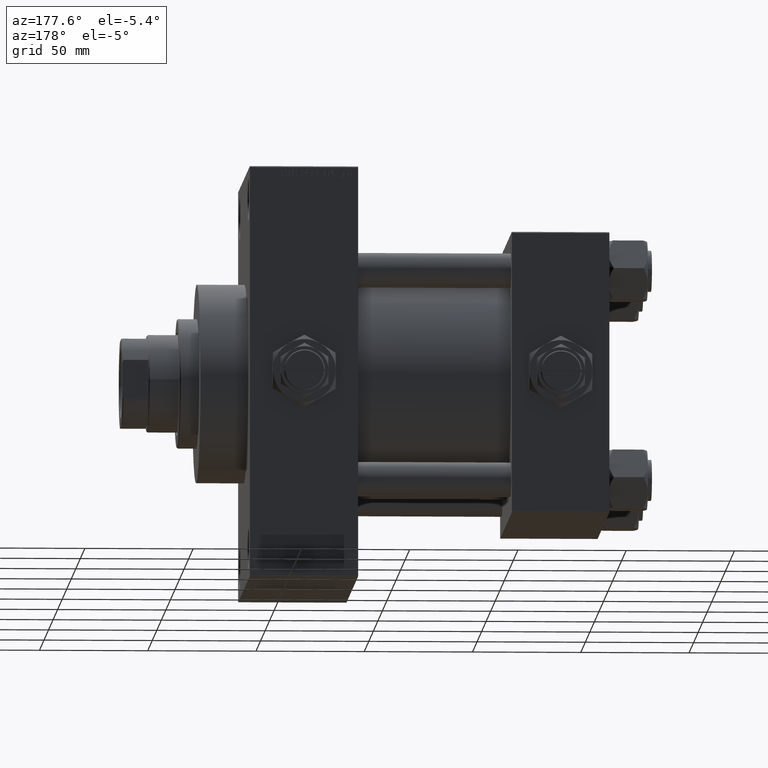
[diagram: clean part render]
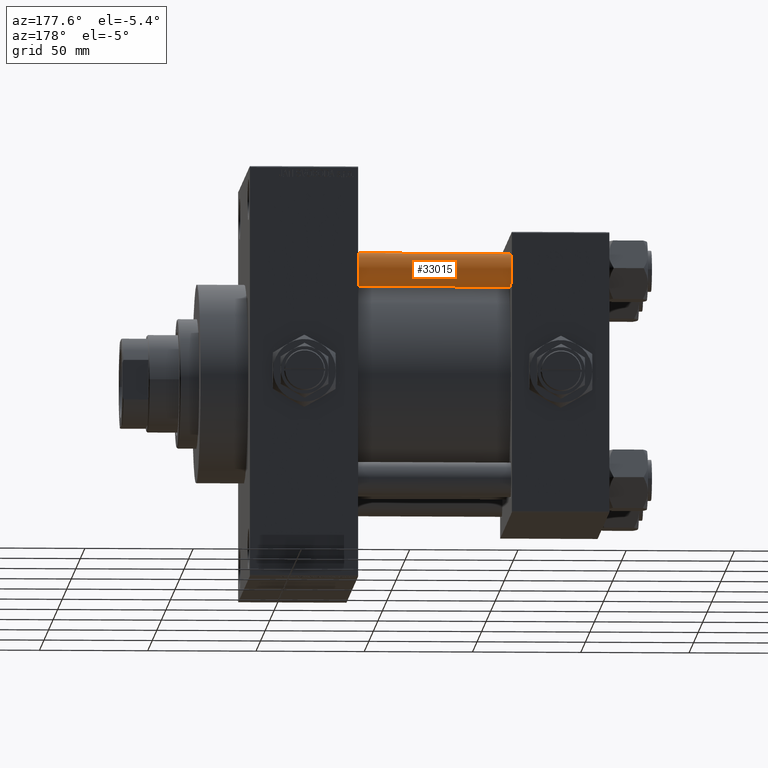
[diagram: same view with one face highlighted and labeled with its STEP entity id]
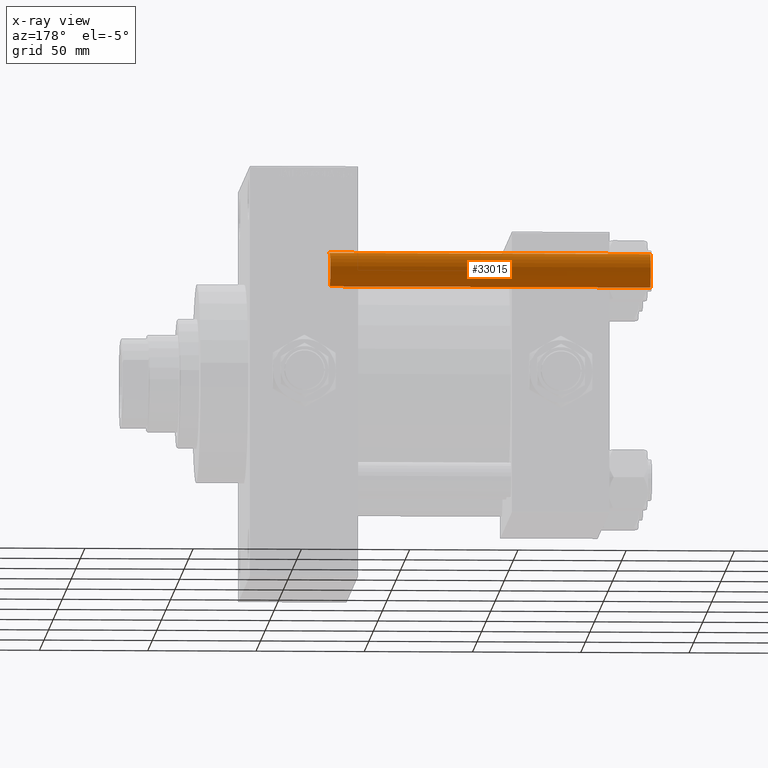
[diagram: x-ray of the same camera — body ghosted, the highlighted face saturated]
A machine part, auxiliary view. The second image highlights one B-rep face of the part: STEP entity #33015.
The next image is the same camera in x-ray: the body ghosted, the highlighted face saturated — about 0% of this face is hidden behind the body in this view.
In plain terms, the highlighted cylindrical surface (edge-blend (fillet) strip) has radius 8 mm, axis along (-1, -0, 0).
Its self-contained STEP definition (entity closure, byte-faithful):
#17 = CIRCLE ( 'NONE', #42625, 8.000000000000000000 ) ;
#301 = CARTESIAN_POINT ( 'NONE',  ( -8.000000000000000000, 0.000000000000000000, 148.5000000000000000 ) ) ;
#2601 = DIRECTION ( 'NONE',  ( -0.000000000000000000, -0.000000000000000000, 1.000000000000000000 ) ) ;
#4935 = AXIS2_PLACEMENT_3D ( 'NONE', #46132, #8354, #19459 ) ;
#5067 = FACE_OUTER_BOUND ( 'NONE', #36239, .T. ) ;
#8354 = DIRECTION ( 'NONE',  ( -0.000000000000000000, -0.000000000000000000, -1.000000000000000000 ) ) ;
#8503 = ORIENTED_EDGE ( 'NONE', *, *, #29824, .T. ) ;
#10138 = CARTESIAN_POINT ( 'NONE',  ( 8.000000000000000000, 9.797174393178825657E-16, 148.5000000000000000 ) ) ;
#13664 = DIRECTION ( 'NONE',  ( 1.000000000000000000, 0.000000000000000000, 0.000000000000000000 ) ) ;
#13699 = CARTESIAN_POINT ( 'NONE',  ( 0.000000000000000000, 0.000000000000000000, 0.5000000000000281997 ) ) ;
#17109 = CARTESIAN_POINT ( 'NONE',  ( -8.000000000000000000, 0.000000000000000000, 0.5000000000000281997 ) ) ;
#17904 = VECTOR ( 'NONE', #18649, 1000.000000000000000 ) ;
#18141 = CARTESIAN_POINT ( 'NONE',  ( 8.000000000000000000, 9.797174393178825657E-16, 149.0000000000000000 ) ) ;
#18649 = DIRECTION ( 'NONE',  ( -0.000000000000000000, -0.000000000000000000, -1.000000000000000000 ) ) ;
#19459 = DIRECTION ( 'NONE',  ( -1.000000000000000000, 0.000000000000000000, 0.000000000000000000 ) ) ;
#19686 = CIRCLE ( 'NONE', #26117, 8.000000000000000000 ) ;
#20423 = CARTESIAN_POINT ( 'NONE',  ( -8.000000000000000000, 0.000000000000000000, 149.0000000000000000 ) ) ;
#20464 = CARTESIAN_POINT ( 'NONE',  ( 8.000000000000000000, 9.797174393178825657E-16, 0.5000000000000281997 ) ) ;
#21277 = DIRECTION ( 'NONE',  ( 1.000000000000000000, 0.000000000000000000, 0.000000000000000000 ) ) ;
#26117 = AXIS2_PLACEMENT_3D ( 'NONE', #32820, #48157, #13664 ) ;
#26218 = VERTEX_POINT ( 'NONE', #17109 ) ;
#29824 = EDGE_CURVE ( 'NONE', #36986, #26218, #17, .T. ) ;
#32169 = EDGE_CURVE ( 'NONE', #44221, #26218, #32748, .T. ) ;
#32748 = LINE ( 'NONE', #20423, #33049 ) ;
#32820 = CARTESIAN_POINT ( 'NONE',  ( 0.000000000000000000, 0.000000000000000000, 148.5000000000000000 ) ) ;
#33015 = ADVANCED_FACE ( 'NONE', ( #5067 ), #42607, .T. ) ;
#33049 = VECTOR ( 'NONE', #39547, 1000.000000000000000 ) ;
#36057 = ORIENTED_EDGE ( 'NONE', *, *, #39585, .T. ) ;
#36239 = EDGE_LOOP ( 'NONE', ( #41446, #36057, #8503, #39898 ) ) ;
#36986 = VERTEX_POINT ( 'NONE', #20464 ) ;
#37782 = LINE ( 'NONE', #18141, #17904 ) ;
#39547 = DIRECTION ( 'NONE',  ( -0.000000000000000000, -0.000000000000000000, -1.000000000000000000 ) ) ;
#39585 = EDGE_CURVE ( 'NONE', #42117, #36986, #37782, .T. ) ;
#39898 = ORIENTED_EDGE ( 'NONE', *, *, #32169, .F. ) ;
#41446 = ORIENTED_EDGE ( 'NONE', *, *, #43043, .T. ) ;
#42117 = VERTEX_POINT ( 'NONE', #10138 ) ;
#42607 = CYLINDRICAL_SURFACE ( 'NONE', #4935, 8.000000000000000000 ) ;
#42625 = AXIS2_PLACEMENT_3D ( 'NONE', #13699, #2601, #21277 ) ;
#43043 = EDGE_CURVE ( 'NONE', #44221, #42117, #19686, .T. ) ;
#44221 = VERTEX_POINT ( 'NONE', #301 ) ;
#46132 = CARTESIAN_POINT ( 'NONE',  ( 0.000000000000000000, 0.000000000000000000, 149.0000000000000000 ) ) ;
#48157 = DIRECTION ( 'NONE',  ( 0.000000000000000000, 0.000000000000000000, -1.000000000000000000 ) ) ;